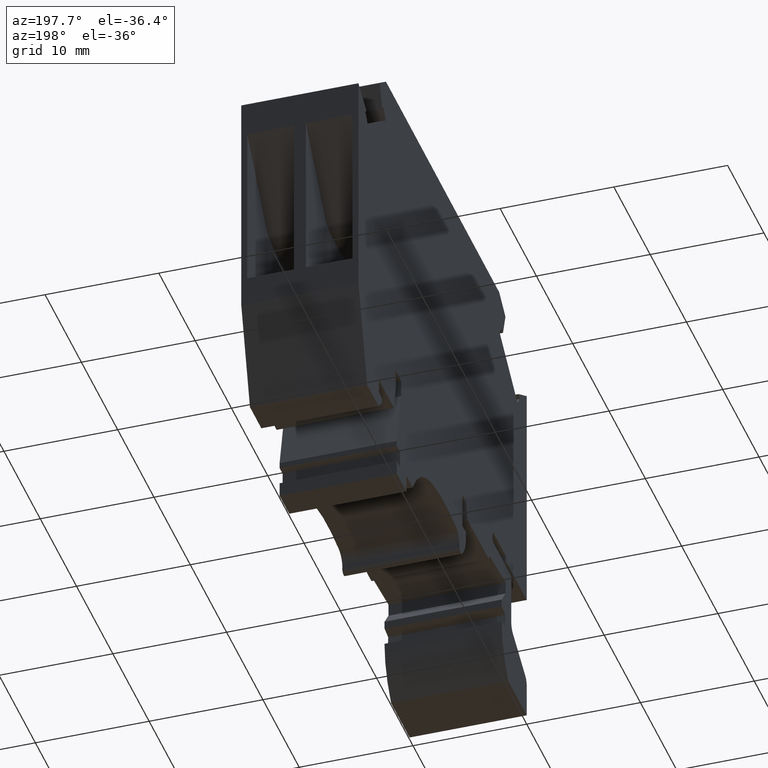
[diagram: clean part render]
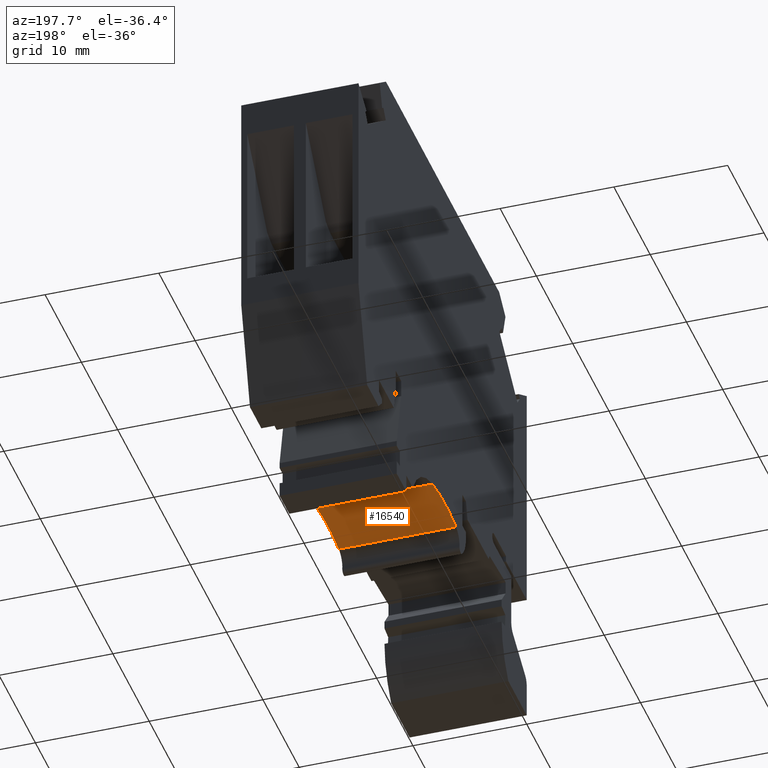
[diagram: same view with one face highlighted and labeled with its STEP entity id]
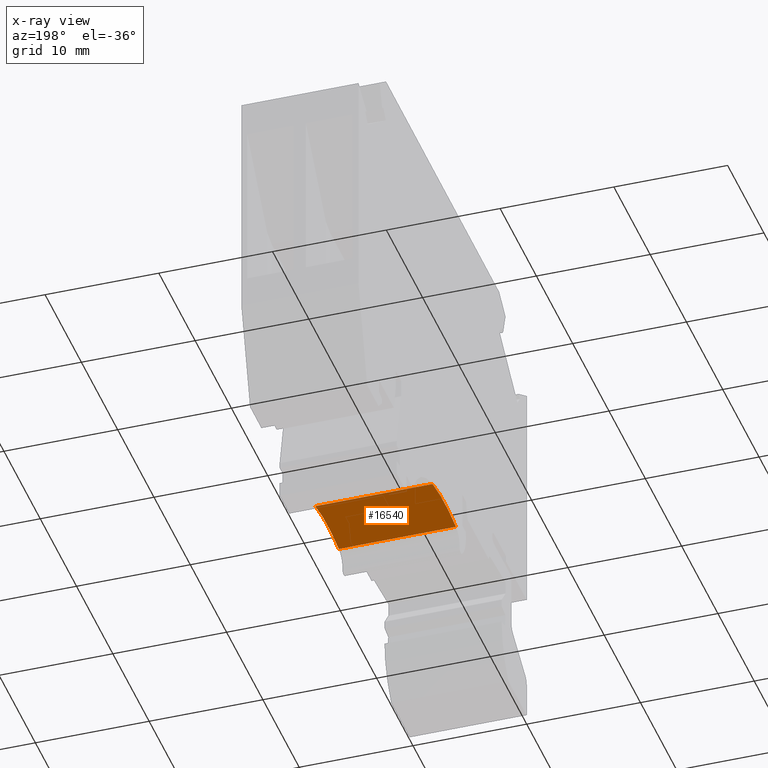
[diagram: x-ray of the same camera — body ghosted, the highlighted face saturated]
A machine part, auxiliary view. The second image highlights one B-rep face of the part: STEP entity #16540.
The next image is the same camera in x-ray: the body ghosted, the highlighted face saturated — about 4% of this face is hidden behind the body in this view.
In plain terms, the highlighted cylindrical surface (partial cylindrical patch) has radius 16.2 mm, axis along (1, -0, 0).
Its self-contained STEP definition (entity closure, byte-faithful):
#3330=CARTESIAN_POINT('',(-18.8912739295069,10.0555369279165,10.3));
#3340=VERTEX_POINT('',#3330);
#3370=CARTESIAN_POINT('',(-22.3520985338077,-5.77047624844183,10.3));
#3380=DIRECTION('',(0.,0.,1.));
#3390=DIRECTION('',(1.,0.,0.));
#3400=AXIS2_PLACEMENT_3D('',#3370,#3380,#3390);
#3410=CIRCLE('',#3400,16.2);
#3420=CARTESIAN_POINT('',(-25.3616999403209,10.1475104136305,10.3));
#3430=VERTEX_POINT('',#3420);
#3440=EDGE_CURVE('',#3340,#3430,#3410,.T.);
#8020=CARTESIAN_POINT('',(-25.3616999403209,10.1475104136305,
-7.105427357601E-15));
#8030=VERTEX_POINT('',#8020);
#8060=CARTESIAN_POINT('',(-22.3520985338077,-5.77047624844183,
3.5527136788005E-15));
#8070=DIRECTION('',(0.,0.,1.));
#8080=DIRECTION('',(1.,0.,0.));
#8090=AXIS2_PLACEMENT_3D('',#8060,#8070,#8080);
#8100=CIRCLE('',#8090,16.2);
#8110=CARTESIAN_POINT('',(-18.8912739295069,10.0555369279165,
-7.105427357601E-15));
#8120=VERTEX_POINT('',#8110);
#8130=EDGE_CURVE('',#8120,#8030,#8100,.T.);
#16330=CARTESIAN_POINT('',(-22.3520985338077,-5.77047624844183,5.15));
#16340=DIRECTION('',(0.,0.,1.));
#16350=DIRECTION('',(1.,0.,0.));
#16360=AXIS2_PLACEMENT_3D('',#16330,#16340,#16350);
#16370=CYLINDRICAL_SURFACE('',#16360,16.2);
#16380=ORIENTED_EDGE('',*,*,#3440,.T.);
#16390=CARTESIAN_POINT('',(-18.8912739295069,10.0555369279165,5.15));
#16400=DIRECTION('',(0.,0.,-1.));
#16410=VECTOR('',#16400,1.);
#16420=LINE('',#16390,#16410);
#16430=EDGE_CURVE('',#3340,#8120,#16420,.T.);
#16440=ORIENTED_EDGE('',*,*,#16430,.F.);
#16450=ORIENTED_EDGE('',*,*,#8130,.F.);
#16460=CARTESIAN_POINT('',(-25.3616999403209,10.1475104136305,5.15));
#16470=DIRECTION('',(0.,0.,-1.));
#16480=VECTOR('',#16470,1.);
#16490=LINE('',#16460,#16480);
#16500=EDGE_CURVE('',#3430,#8030,#16490,.T.);
#16510=ORIENTED_EDGE('',*,*,#16500,.T.);
#16520=EDGE_LOOP('',(#16510,#16450,#16440,#16380));
#16530=FACE_OUTER_BOUND('',#16520,.T.);
#16540=ADVANCED_FACE('',(#16530),#16370,.F.);